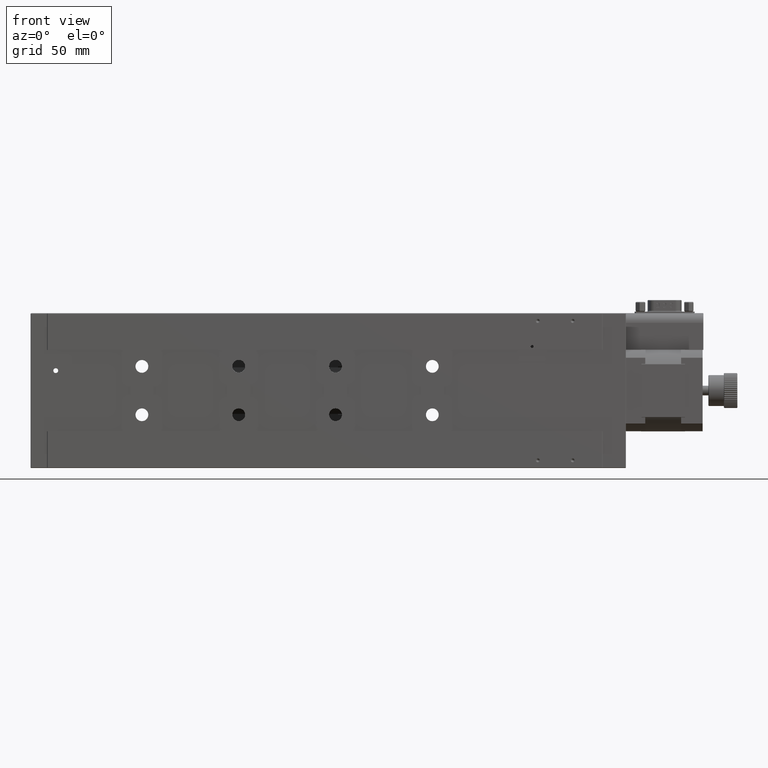
[diagram: clean part render]
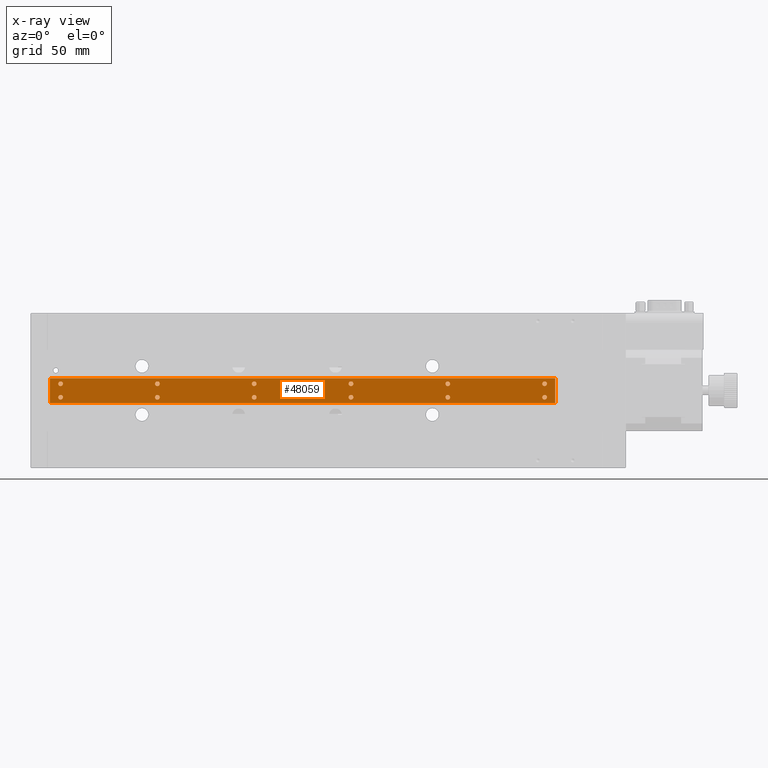
[diagram: x-ray — body ghosted, one internal face saturated and labeled with its STEP entity id]
A machine part, front view, then the same camera in x-ray: the body is ghosted and one INTERNAL B-rep face — a face not visible from any outside direction — is saturated and labeled: STEP entity #48059.
In plain terms, the highlighted planar face has unit normal (-0, -1, 0).
Its self-contained STEP definition (entity closure, byte-faithful):
#16 = CIRCLE ( 'NONE', #22900, 1.199999999999992600 ) ;
#827 = CIRCLE ( 'NONE', #70721, 1.200000000000006600 ) ;
#1364 = EDGE_CURVE ( 'NONE', #117654, #32707, #12191, .T. ) ;
#1700 = DIRECTION ( 'NONE',  ( 0.0000000000000000000, 0.0000000000000000000, -1.000000000000000000 ) ) ;
#2315 = VERTEX_POINT ( 'NONE', #43504 ) ;
#2327 = DIRECTION ( 'NONE',  ( 0.0000000000000000000, 0.0000000000000000000, -1.000000000000000000 ) ) ;
#2790 = VERTEX_POINT ( 'NONE', #96036 ) ;
#2822 = DIRECTION ( 'NONE',  ( 0.0000000000000000000, 0.0000000000000000000, -1.000000000000000000 ) ) ;
#4203 = DIRECTION ( 'NONE',  ( 1.522596426788525800E-017, 1.000000000000000000, -1.499528395081860600E-017 ) ) ;
#4611 = ORIENTED_EDGE ( 'NONE', *, *, #122025, .T. ) ;
#4987 = AXIS2_PLACEMENT_3D ( 'NONE', #100880, #111938, #93966 ) ;
#5411 = ORIENTED_EDGE ( 'NONE', *, *, #32433, .T. ) ;
#5612 = CARTESIAN_POINT ( 'NONE',  ( 15.49999999999998600, 9.500000000000005300, -43.50000000000000000 ) ) ;
#5981 = EDGE_CURVE ( 'NONE', #79364, #16590, #67551, .T. ) ;
#6752 = ORIENTED_EDGE ( 'NONE', *, *, #70922, .T. ) ;
#7409 = AXIS2_PLACEMENT_3D ( 'NONE', #84491, #94610, #116754 ) ;
#7607 = FACE_BOUND ( 'NONE', #49936, .T. ) ;
#8842 = VERTEX_POINT ( 'NONE', #40769 ) ;
#9523 = VERTEX_POINT ( 'NONE', #26834 ) ;
#9570 = EDGE_CURVE ( 'NONE', #9833, #66883, #69957, .T. ) ;
#9833 = VERTEX_POINT ( 'NONE', #32042 ) ;
#9850 = ORIENTED_EDGE ( 'NONE', *, *, #1364, .T. ) ;
#11000 = CARTESIAN_POINT ( 'NONE',  ( 15.49999999999998600, 9.500000000000005300, -37.69999999999999600 ) ) ;
#11620 = ORIENTED_EDGE ( 'NONE', *, *, #66230, .T. ) ;
#11919 = CARTESIAN_POINT ( 'NONE',  ( 115.4999999999999600, 9.500000000000003600, -36.50000000000000000 ) ) ;
#12069 = CARTESIAN_POINT ( 'NONE',  ( 65.49999999999997200, 9.500000000000005300, -36.50000000000000000 ) ) ;
#12191 = CIRCLE ( 'NONE', #89879, 1.200000000000006600 ) ;
#12503 = CIRCLE ( 'NONE', #104117, 1.199999999999999700 ) ;
#13461 = DIRECTION ( 'NONE',  ( 1.522596426788525800E-017, 1.000000000000000000, -1.499528395081860600E-017 ) ) ;
#14687 = CARTESIAN_POINT ( 'NONE',  ( 65.49999999999997200, 9.500000000000005300, -43.50000000000000000 ) ) ;
#15677 = CARTESIAN_POINT ( 'NONE',  ( 65.49999999999997200, 9.500000000000005300, -44.69999999999998900 ) ) ;
#16141 = FACE_BOUND ( 'NONE', #126332, .T. ) ;
#16237 = CARTESIAN_POINT ( 'NONE',  ( 215.4999999999999700, 9.500000000000001800, -36.50000000000000700 ) ) ;
#16590 = VERTEX_POINT ( 'NONE', #93232 ) ;
#16957 = CARTESIAN_POINT ( 'NONE',  ( 115.4999999999999600, 9.500000000000003600, -35.29999999999999700 ) ) ;
#17808 = CIRCLE ( 'NONE', #29512, 1.199999999999992600 ) ;
#17964 = CARTESIAN_POINT ( 'NONE',  ( 115.4999999999999600, 9.500000000000003600, -42.29999999999999700 ) ) ;
#18200 = EDGE_LOOP ( 'NONE', ( #11620, #69294 ) ) ;
#19752 = LINE ( 'NONE', #73700, #94062 ) ;
#19947 = AXIS2_PLACEMENT_3D ( 'NONE', #96382, #29772, #129570 ) ;
#20984 = CARTESIAN_POINT ( 'NONE',  ( 115.4999999999999600, 9.500000000000003600, -44.69999999999999600 ) ) ;
#22900 = AXIS2_PLACEMENT_3D ( 'NONE', #51431, #85240, #119371 ) ;
#23263 = AXIS2_PLACEMENT_3D ( 'NONE', #112377, #46306, #2822 ) ;
#23346 = CARTESIAN_POINT ( 'NONE',  ( 165.4999999999999700, 9.500000000000003600, -35.30000000000000400 ) ) ;
#24051 = CARTESIAN_POINT ( 'NONE',  ( 65.49999999999997200, 9.500000000000005300, -42.30000000000000400 ) ) ;
#24604 = CIRCLE ( 'NONE', #106781, 1.199999999999999700 ) ;
#25104 = DIRECTION ( 'NONE',  ( 1.522596426788525800E-017, 1.000000000000000000, -1.499528395081860600E-017 ) ) ;
#26244 = CIRCLE ( 'NONE', #4987, 1.199999999999999700 ) ;
#26834 = CARTESIAN_POINT ( 'NONE',  ( 215.4999999999999700, 9.500000000000001800, -42.30000000000001100 ) ) ;
#28783 = DIRECTION ( 'NONE',  ( 0.0000000000000000000, 0.0000000000000000000, -1.000000000000000000 ) ) ;
#29116 = CARTESIAN_POINT ( 'NONE',  ( 265.4999999999999400, 9.500000000000001800, -44.70000000000000300 ) ) ;
#29512 = AXIS2_PLACEMENT_3D ( 'NONE', #12069, #101821, #45339 ) ;
#29772 = DIRECTION ( 'NONE',  ( 1.522596426788525800E-017, 1.000000000000000000, -1.499528395081860600E-017 ) ) ;
#29785 = VERTEX_POINT ( 'NONE', #24051 ) ;
#29919 = DIRECTION ( 'NONE',  ( 1.522596426788525800E-017, 1.000000000000000000, -1.499528395081860600E-017 ) ) ;
#31198 = EDGE_CURVE ( 'NONE', #66883, #9833, #39687, .T. ) ;
#32042 = CARTESIAN_POINT ( 'NONE',  ( 165.4999999999999700, 9.500000000000003600, -42.30000000000000400 ) ) ;
#32433 = EDGE_CURVE ( 'NONE', #87376, #48609, #106659, .T. ) ;
#32505 = EDGE_LOOP ( 'NONE', ( #121168, #142845 ) ) ;
#32707 = VERTEX_POINT ( 'NONE', #35542 ) ;
#32748 = EDGE_LOOP ( 'NONE', ( #68835, #58132 ) ) ;
#33450 = FACE_BOUND ( 'NONE', #18200, .T. ) ;
#34078 = DIRECTION ( 'NONE',  ( 0.0000000000000000000, 0.0000000000000000000, -1.000000000000000000 ) ) ;
#35195 = CARTESIAN_POINT ( 'NONE',  ( 165.4999999999999700, 9.500000000000003600, -36.50000000000000700 ) ) ;
#35542 = CARTESIAN_POINT ( 'NONE',  ( 15.49999999999998600, 9.500000000000005300, -44.70000000000000300 ) ) ;
#36049 = EDGE_LOOP ( 'NONE', ( #104323, #135490, #142015, #86800 ) ) ;
#36717 = AXIS2_PLACEMENT_3D ( 'NONE', #98763, #97836, #109814 ) ;
#36940 = FACE_BOUND ( 'NONE', #118654, .T. ) ;
#38397 = EDGE_CURVE ( 'NONE', #59192, #116836, #24604, .T. ) ;
#39687 = CIRCLE ( 'NONE', #7409, 1.199999999999999700 ) ;
#40769 = CARTESIAN_POINT ( 'NONE',  ( 271.0000000000000000, 9.500000000000001800, -46.40000000000001300 ) ) ;
#41574 = AXIS2_PLACEMENT_3D ( 'NONE', #82507, #94074, #72808 ) ;
#41635 = ORIENTED_EDGE ( 'NONE', *, *, #109109, .T. ) ;
#42080 = FACE_BOUND ( 'NONE', #97999, .T. ) ;
#43150 = CARTESIAN_POINT ( 'NONE',  ( 15.49999999999998600, 9.500000000000005300, -36.49999999999999300 ) ) ;
#43504 = CARTESIAN_POINT ( 'NONE',  ( 215.4999999999999700, 9.500000000000001800, -44.69999999999999600 ) ) ;
#44221 = CIRCLE ( 'NONE', #80744, 1.199999999999992600 ) ;
#44414 = CARTESIAN_POINT ( 'NONE',  ( 271.0000000000000000, 9.500000000000001800, -33.60000000000000100 ) ) ;
#45339 = DIRECTION ( 'NONE',  ( 0.0000000000000000000, 0.0000000000000000000, -1.000000000000000000 ) ) ;
#46306 = DIRECTION ( 'NONE',  ( 1.522596426788525800E-017, 1.000000000000000000, -1.499528395081860600E-017 ) ) ;
#46812 = CARTESIAN_POINT ( 'NONE',  ( 271.0000000000000000, 9.500000000000001800, -46.40000000000001300 ) ) ;
#48059 = ADVANCED_FACE ( 'NONE', ( #85372, #42080, #62830, #48989, #118107, #78399, #16141, #36940, #81867, #69761, #7607, #102583, #33450 ), #55329, .T. ) ;
#48609 = VERTEX_POINT ( 'NONE', #118004 ) ;
#48989 = FACE_BOUND ( 'NONE', #134885, .T. ) ;
#49034 = ORIENTED_EDGE ( 'NONE', *, *, #38397, .T. ) ;
#49936 = EDGE_LOOP ( 'NONE', ( #49034, #101958 ) ) ;
#50455 = DIRECTION ( 'NONE',  ( 5.551115123125781500E-017, 1.499528395081860600E-017, 1.000000000000000000 ) ) ;
#51188 = CARTESIAN_POINT ( 'NONE',  ( 215.4999999999999700, 9.500000000000001800, -37.69999999999999600 ) ) ;
#51431 = CARTESIAN_POINT ( 'NONE',  ( 215.4999999999999700, 9.500000000000001800, -43.50000000000000700 ) ) ;
#52268 = DIRECTION ( 'NONE',  ( 1.522596426788525800E-017, 1.000000000000000000, -1.499528395081860600E-017 ) ) ;
#52326 = VERTEX_POINT ( 'NONE', #81639 ) ;
#55329 = PLANE ( 'NONE',  #36717 ) ;
#55470 = DIRECTION ( 'NONE',  ( 1.522596426788525800E-017, 1.000000000000000000, -1.499528395081860600E-017 ) ) ;
#56274 = DIRECTION ( 'NONE',  ( 1.522596426788525800E-017, 1.000000000000000000, -1.499528395081860600E-017 ) ) ;
#57385 = CARTESIAN_POINT ( 'NONE',  ( 265.4999999999999400, 9.500000000000001800, -43.50000000000001400 ) ) ;
#58132 = ORIENTED_EDGE ( 'NONE', *, *, #122291, .T. ) ;
#58209 = VERTEX_POINT ( 'NONE', #111690 ) ;
#58243 = CIRCLE ( 'NONE', #71303, 1.199999999999992600 ) ;
#59192 = VERTEX_POINT ( 'NONE', #80006 ) ;
#59589 = ORIENTED_EDGE ( 'NONE', *, *, #124928, .T. ) ;
#59629 = DIRECTION ( 'NONE',  ( 1.522596426788525800E-017, 1.000000000000000000, -1.499528395081860600E-017 ) ) ;
#59956 = DIRECTION ( 'NONE',  ( 1.522596426788525800E-017, 1.000000000000000000, -1.499528395081860600E-017 ) ) ;
#61367 = ORIENTED_EDGE ( 'NONE', *, *, #9570, .T. ) ;
#61420 = DIRECTION ( 'NONE',  ( 1.522596426788525800E-017, 1.000000000000000000, -1.499528395081860600E-017 ) ) ;
#62830 = FACE_OUTER_BOUND ( 'NONE', #36049, .T. ) ;
#62922 = ORIENTED_EDGE ( 'NONE', *, *, #110315, .T. ) ;
#62929 = EDGE_LOOP ( 'NONE', ( #130626, #117788 ) ) ;
#63805 = CIRCLE ( 'NONE', #98417, 1.199999999999992600 ) ;
#64611 = EDGE_CURVE ( 'NONE', #92748, #142520, #111330, .T. ) ;
#64722 = CARTESIAN_POINT ( 'NONE',  ( 15.49999999999998600, 9.500000000000005300, -36.49999999999999300 ) ) ;
#65374 = DIRECTION ( 'NONE',  ( 0.0000000000000000000, 0.0000000000000000000, -1.000000000000000000 ) ) ;
#65423 = AXIS2_PLACEMENT_3D ( 'NONE', #11919, #133373, #34078 ) ;
#66230 = EDGE_CURVE ( 'NONE', #142520, #92748, #17808, .T. ) ;
#66423 = CARTESIAN_POINT ( 'NONE',  ( 15.49999999999998600, 9.500000000000005300, -35.29999999999998300 ) ) ;
#66479 = EDGE_CURVE ( 'NONE', #48609, #87376, #97178, .T. ) ;
#66528 = DIRECTION ( 'NONE',  ( 0.0000000000000000000, 0.0000000000000000000, -1.000000000000000000 ) ) ;
#66638 = CIRCLE ( 'NONE', #109369, 1.200000000000006600 ) ;
#66883 = VERTEX_POINT ( 'NONE', #88245 ) ;
#67551 = CIRCLE ( 'NONE', #88828, 1.199999999999992600 ) ;
#68308 = EDGE_LOOP ( 'NONE', ( #6752, #41635 ) ) ;
#68835 = ORIENTED_EDGE ( 'NONE', *, *, #134866, .T. ) ;
#69219 = EDGE_CURVE ( 'NONE', #115476, #134603, #827, .T. ) ;
#69294 = ORIENTED_EDGE ( 'NONE', *, *, #64611, .T. ) ;
#69761 = FACE_BOUND ( 'NONE', #32505, .T. ) ;
#69957 = CIRCLE ( 'NONE', #134711, 1.199999999999999700 ) ;
#70502 = EDGE_CURVE ( 'NONE', #116836, #59192, #86701, .T. ) ;
#70650 = EDGE_CURVE ( 'NONE', #140679, #52326, #136460, .T. ) ;
#70721 = AXIS2_PLACEMENT_3D ( 'NONE', #43150, #88122, #65374 ) ;
#70922 = EDGE_CURVE ( 'NONE', #2315, #9523, #16, .T. ) ;
#71231 = CARTESIAN_POINT ( 'NONE',  ( 9.999999999999980500, 9.500000000000005300, -46.39999999999999900 ) ) ;
#71303 = AXIS2_PLACEMENT_3D ( 'NONE', #96544, #29919, #72463 ) ;
#72463 = DIRECTION ( 'NONE',  ( 0.0000000000000000000, 0.0000000000000000000, -1.000000000000000000 ) ) ;
#72808 = DIRECTION ( 'NONE',  ( 0.0000000000000000000, 0.0000000000000000000, -1.000000000000000000 ) ) ;
#73673 = VERTEX_POINT ( 'NONE', #107739 ) ;
#73700 = CARTESIAN_POINT ( 'NONE',  ( 271.0000000000000000, 9.500000000000001800, -46.40000000000001300 ) ) ;
#74964 = AXIS2_PLACEMENT_3D ( 'NONE', #98899, #55470, #78197 ) ;
#75449 = CIRCLE ( 'NONE', #23263, 1.199999999999992600 ) ;
#76505 = ORIENTED_EDGE ( 'NONE', *, *, #93852, .T. ) ;
#76707 = AXIS2_PLACEMENT_3D ( 'NONE', #79639, #13461, #2327 ) ;
#76749 = DIRECTION ( 'NONE',  ( 1.522596426788525800E-017, 1.000000000000000000, -1.499528395081860600E-017 ) ) ;
#77106 = CARTESIAN_POINT ( 'NONE',  ( 15.49999999999998600, 9.500000000000005300, -42.29999999999999000 ) ) ;
#77709 = CIRCLE ( 'NONE', #132139, 1.200000000000006600 ) ;
#78197 = DIRECTION ( 'NONE',  ( 0.0000000000000000000, 0.0000000000000000000, -1.000000000000000000 ) ) ;
#78399 = FACE_BOUND ( 'NONE', #68308, .T. ) ;
#79017 = CARTESIAN_POINT ( 'NONE',  ( 65.49999999999997200, 9.500000000000005300, -35.30000000000000400 ) ) ;
#79364 = VERTEX_POINT ( 'NONE', #51188 ) ;
#79639 = CARTESIAN_POINT ( 'NONE',  ( 215.4999999999999700, 9.500000000000001800, -36.50000000000000700 ) ) ;
#79708 = DIRECTION ( 'NONE',  ( 0.0000000000000000000, 0.0000000000000000000, -1.000000000000000000 ) ) ;
#79829 = CARTESIAN_POINT ( 'NONE',  ( 9.999999999999980500, 9.500000000000005300, -46.39999999999999900 ) ) ;
#80006 = CARTESIAN_POINT ( 'NONE',  ( 115.4999999999999600, 9.500000000000003600, -37.69999999999999600 ) ) ;
#80744 = AXIS2_PLACEMENT_3D ( 'NONE', #83213, #61420, #106277 ) ;
#80869 = EDGE_LOOP ( 'NONE', ( #62922, #76505 ) ) ;
#81639 = CARTESIAN_POINT ( 'NONE',  ( 9.999999999999980500, 9.500000000000005300, -33.59999999999999400 ) ) ;
#81709 = DIRECTION ( 'NONE',  ( 0.0000000000000000000, 0.0000000000000000000, -1.000000000000000000 ) ) ;
#81867 = FACE_BOUND ( 'NONE', #32748, .T. ) ;
#81912 = VERTEX_POINT ( 'NONE', #23346 ) ;
#82507 = CARTESIAN_POINT ( 'NONE',  ( 265.4999999999999400, 9.500000000000001800, -43.50000000000001400 ) ) ;
#83213 = CARTESIAN_POINT ( 'NONE',  ( 65.49999999999997200, 9.500000000000005300, -43.50000000000000000 ) ) ;
#83998 = CARTESIAN_POINT ( 'NONE',  ( 271.0000000000000000, 9.500000000000001800, -33.60000000000000100 ) ) ;
#84491 = CARTESIAN_POINT ( 'NONE',  ( 165.4999999999999700, 9.500000000000003600, -43.50000000000000700 ) ) ;
#85240 = DIRECTION ( 'NONE',  ( 1.522596426788525800E-017, 1.000000000000000000, -1.499528395081860600E-017 ) ) ;
#85372 = FACE_BOUND ( 'NONE', #88265, .T. ) ;
#86402 = ORIENTED_EDGE ( 'NONE', *, *, #31198, .T. ) ;
#86474 = AXIS2_PLACEMENT_3D ( 'NONE', #35195, #25104, #79708 ) ;
#86701 = CIRCLE ( 'NONE', #65423, 1.199999999999999700 ) ;
#86800 = ORIENTED_EDGE ( 'NONE', *, *, #118673, .F. ) ;
#87376 = VERTEX_POINT ( 'NONE', #29116 ) ;
#87433 = VERTEX_POINT ( 'NONE', #17964 ) ;
#87544 = ORIENTED_EDGE ( 'NONE', *, *, #130258, .T. ) ;
#88122 = DIRECTION ( 'NONE',  ( 1.522596426788525800E-017, 1.000000000000000000, -1.499528395081860600E-017 ) ) ;
#88245 = CARTESIAN_POINT ( 'NONE',  ( 165.4999999999999700, 9.500000000000003600, -44.70000000000000300 ) ) ;
#88265 = EDGE_LOOP ( 'NONE', ( #4611, #114651 ) ) ;
#88828 = AXIS2_PLACEMENT_3D ( 'NONE', #16237, #4203, #114211 ) ;
#89879 = AXIS2_PLACEMENT_3D ( 'NONE', #99836, #76749, #122452 ) ;
#90275 = DIRECTION ( 'NONE',  ( 1.522596426788525800E-017, 1.000000000000000000, -1.499528395081860600E-017 ) ) ;
#91474 = EDGE_CURVE ( 'NONE', #87433, #128498, #12503, .T. ) ;
#91779 = DIRECTION ( 'NONE',  ( -5.551115123125781500E-017, -1.499528395081860600E-017, -1.000000000000000000 ) ) ;
#92748 = VERTEX_POINT ( 'NONE', #79017 ) ;
#93034 = CARTESIAN_POINT ( 'NONE',  ( 165.4999999999999700, 9.500000000000003600, -43.50000000000000700 ) ) ;
#93232 = CARTESIAN_POINT ( 'NONE',  ( 215.4999999999999700, 9.500000000000001800, -35.30000000000001100 ) ) ;
#93677 = CARTESIAN_POINT ( 'NONE',  ( 115.4999999999999600, 9.500000000000003600, -43.50000000000000000 ) ) ;
#93726 = CIRCLE ( 'NONE', #74964, 1.199999999999992600 ) ;
#93852 = EDGE_CURVE ( 'NONE', #58209, #73673, #93726, .T. ) ;
#93966 = DIRECTION ( 'NONE',  ( 0.0000000000000000000, 0.0000000000000000000, -1.000000000000000000 ) ) ;
#94062 = VECTOR ( 'NONE', #105044, 1000.000000000000000 ) ;
#94074 = DIRECTION ( 'NONE',  ( 1.522596426788525800E-017, 1.000000000000000000, -1.499528395081860600E-017 ) ) ;
#94444 = VERTEX_POINT ( 'NONE', #15677 ) ;
#94610 = DIRECTION ( 'NONE',  ( 1.522596426788525800E-017, 1.000000000000000000, -1.499528395081860600E-017 ) ) ;
#96036 = CARTESIAN_POINT ( 'NONE',  ( 165.4999999999999700, 9.500000000000003600, -37.70000000000000300 ) ) ;
#96334 = DIRECTION ( 'NONE',  ( 1.522596426788525800E-017, 1.000000000000000000, -1.499528395081860600E-017 ) ) ;
#96382 = CARTESIAN_POINT ( 'NONE',  ( 165.4999999999999700, 9.500000000000003600, -36.50000000000000700 ) ) ;
#96544 = CARTESIAN_POINT ( 'NONE',  ( 215.4999999999999700, 9.500000000000001800, -43.50000000000000700 ) ) ;
#96913 = CIRCLE ( 'NONE', #76707, 1.199999999999992600 ) ;
#97178 = CIRCLE ( 'NONE', #41574, 1.199999999999992600 ) ;
#97836 = DIRECTION ( 'NONE',  ( -1.522596426788525800E-017, -1.000000000000000000, 1.499528395081860600E-017 ) ) ;
#97999 = EDGE_LOOP ( 'NONE', ( #87544, #9850 ) ) ;
#98417 = AXIS2_PLACEMENT_3D ( 'NONE', #14687, #59629, #126570 ) ;
#98763 = CARTESIAN_POINT ( 'NONE',  ( 140.5000000000000000, 9.500000000000003600, -40.00000000000000000 ) ) ;
#98899 = CARTESIAN_POINT ( 'NONE',  ( 265.4999999999999400, 9.500000000000001800, -36.50000000000000700 ) ) ;
#99131 = AXIS2_PLACEMENT_3D ( 'NONE', #57385, #90275, #66528 ) ;
#99836 = CARTESIAN_POINT ( 'NONE',  ( 15.49999999999998600, 9.500000000000005300, -43.50000000000000000 ) ) ;
#100330 = VECTOR ( 'NONE', #50455, 1000.000000000000000 ) ;
#100880 = CARTESIAN_POINT ( 'NONE',  ( 115.4999999999999600, 9.500000000000003600, -43.50000000000000000 ) ) ;
#101007 = CARTESIAN_POINT ( 'NONE',  ( 65.49999999999997200, 9.500000000000005300, -36.50000000000000000 ) ) ;
#101821 = DIRECTION ( 'NONE',  ( 1.522596426788525800E-017, 1.000000000000000000, -1.499528395081860600E-017 ) ) ;
#101958 = ORIENTED_EDGE ( 'NONE', *, *, #70502, .T. ) ;
#102000 = EDGE_CURVE ( 'NONE', #8842, #140679, #19752, .T. ) ;
#102583 = FACE_BOUND ( 'NONE', #62929, .T. ) ;
#103212 = CARTESIAN_POINT ( 'NONE',  ( 65.49999999999997200, 9.500000000000005300, -37.69999999999998900 ) ) ;
#104117 = AXIS2_PLACEMENT_3D ( 'NONE', #93677, #114834, #124887 ) ;
#104323 = ORIENTED_EDGE ( 'NONE', *, *, #70650, .F. ) ;
#104989 = VECTOR ( 'NONE', #122055, 1000.000000000000000 ) ;
#105030 = DIRECTION ( 'NONE',  ( 0.0000000000000000000, 0.0000000000000000000, -1.000000000000000000 ) ) ;
#105044 = DIRECTION ( 'NONE',  ( -1.000000000000000000, 1.522596426788527300E-017, 5.551115123125781500E-017 ) ) ;
#106198 = VECTOR ( 'NONE', #91779, 1000.000000000000000 ) ;
#106277 = DIRECTION ( 'NONE',  ( 0.0000000000000000000, 0.0000000000000000000, -1.000000000000000000 ) ) ;
#106659 = CIRCLE ( 'NONE', #99131, 1.199999999999992600 ) ;
#106781 = AXIS2_PLACEMENT_3D ( 'NONE', #127606, #96334, #28783 ) ;
#107124 = ORIENTED_EDGE ( 'NONE', *, *, #5981, .T. ) ;
#107739 = CARTESIAN_POINT ( 'NONE',  ( 265.4999999999999400, 9.500000000000001800, -37.69999999999999600 ) ) ;
#109109 = EDGE_CURVE ( 'NONE', #9523, #2315, #58243, .T. ) ;
#109369 = AXIS2_PLACEMENT_3D ( 'NONE', #64722, #52268, #118797 ) ;
#109814 = DIRECTION ( 'NONE',  ( 5.551115123125781500E-017, 1.499528395081860600E-017, 1.000000000000000000 ) ) ;
#110315 = EDGE_CURVE ( 'NONE', #73673, #58209, #75449, .T. ) ;
#111330 = CIRCLE ( 'NONE', #129789, 1.199999999999992600 ) ;
#111690 = CARTESIAN_POINT ( 'NONE',  ( 265.4999999999999400, 9.500000000000001800, -35.30000000000001100 ) ) ;
#111938 = DIRECTION ( 'NONE',  ( 1.522596426788525800E-017, 1.000000000000000000, -1.499528395081860600E-017 ) ) ;
#112377 = CARTESIAN_POINT ( 'NONE',  ( 265.4999999999999400, 9.500000000000001800, -36.50000000000000700 ) ) ;
#114211 = DIRECTION ( 'NONE',  ( 0.0000000000000000000, 0.0000000000000000000, -1.000000000000000000 ) ) ;
#114651 = ORIENTED_EDGE ( 'NONE', *, *, #69219, .T. ) ;
#114834 = DIRECTION ( 'NONE',  ( 1.522596426788525800E-017, 1.000000000000000000, -1.499528395081860600E-017 ) ) ;
#115476 = VERTEX_POINT ( 'NONE', #66423 ) ;
#116129 = DIRECTION ( 'NONE',  ( 1.522596426788525800E-017, 1.000000000000000000, -1.499528395081860600E-017 ) ) ;
#116754 = DIRECTION ( 'NONE',  ( 0.0000000000000000000, 0.0000000000000000000, -1.000000000000000000 ) ) ;
#116836 = VERTEX_POINT ( 'NONE', #16957 ) ;
#117654 = VERTEX_POINT ( 'NONE', #77106 ) ;
#117721 = EDGE_CURVE ( 'NONE', #29785, #94444, #63805, .T. ) ;
#117788 = ORIENTED_EDGE ( 'NONE', *, *, #117721, .T. ) ;
#118004 = CARTESIAN_POINT ( 'NONE',  ( 265.4999999999999400, 9.500000000000001800, -42.30000000000001800 ) ) ;
#118107 = FACE_BOUND ( 'NONE', #80869, .T. ) ;
#118654 = EDGE_LOOP ( 'NONE', ( #86402, #61367 ) ) ;
#118673 = EDGE_CURVE ( 'NONE', #52326, #119123, #122229, .T. ) ;
#118796 = CIRCLE ( 'NONE', #19947, 1.199999999999999700 ) ;
#118797 = DIRECTION ( 'NONE',  ( 0.0000000000000000000, 0.0000000000000000000, -1.000000000000000000 ) ) ;
#119123 = VERTEX_POINT ( 'NONE', #83998 ) ;
#119128 = CIRCLE ( 'NONE', #86474, 1.199999999999999700 ) ;
#119371 = DIRECTION ( 'NONE',  ( 0.0000000000000000000, 0.0000000000000000000, -1.000000000000000000 ) ) ;
#121168 = ORIENTED_EDGE ( 'NONE', *, *, #133732, .T. ) ;
#121918 = EDGE_CURVE ( 'NONE', #94444, #29785, #44221, .T. ) ;
#122025 = EDGE_CURVE ( 'NONE', #134603, #115476, #66638, .T. ) ;
#122055 = DIRECTION ( 'NONE',  ( 1.000000000000000000, -1.522596426788527300E-017, -5.551115123125781500E-017 ) ) ;
#122229 = LINE ( 'NONE', #44414, #104989 ) ;
#122291 = EDGE_CURVE ( 'NONE', #81912, #2790, #119128, .T. ) ;
#122452 = DIRECTION ( 'NONE',  ( 0.0000000000000000000, 0.0000000000000000000, -1.000000000000000000 ) ) ;
#124887 = DIRECTION ( 'NONE',  ( 0.0000000000000000000, 0.0000000000000000000, -1.000000000000000000 ) ) ;
#124928 = EDGE_CURVE ( 'NONE', #16590, #79364, #96913, .T. ) ;
#126332 = EDGE_LOOP ( 'NONE', ( #107124, #59589 ) ) ;
#126570 = DIRECTION ( 'NONE',  ( 0.0000000000000000000, 0.0000000000000000000, -1.000000000000000000 ) ) ;
#127606 = CARTESIAN_POINT ( 'NONE',  ( 115.4999999999999600, 9.500000000000003600, -36.50000000000000000 ) ) ;
#128498 = VERTEX_POINT ( 'NONE', #20984 ) ;
#129570 = DIRECTION ( 'NONE',  ( 0.0000000000000000000, 0.0000000000000000000, -1.000000000000000000 ) ) ;
#129789 = AXIS2_PLACEMENT_3D ( 'NONE', #101007, #59956, #81709 ) ;
#130258 = EDGE_CURVE ( 'NONE', #32707, #117654, #77709, .T. ) ;
#130626 = ORIENTED_EDGE ( 'NONE', *, *, #121918, .T. ) ;
#132139 = AXIS2_PLACEMENT_3D ( 'NONE', #5612, #116129, #105030 ) ;
#133373 = DIRECTION ( 'NONE',  ( 1.522596426788525800E-017, 1.000000000000000000, -1.499528395081860600E-017 ) ) ;
#133732 = EDGE_CURVE ( 'NONE', #128498, #87433, #26244, .T. ) ;
#134603 = VERTEX_POINT ( 'NONE', #11000 ) ;
#134711 = AXIS2_PLACEMENT_3D ( 'NONE', #93034, #56274, #1700 ) ;
#134866 = EDGE_CURVE ( 'NONE', #2790, #81912, #118796, .T. ) ;
#134885 = EDGE_LOOP ( 'NONE', ( #5411, #139176 ) ) ;
#135490 = ORIENTED_EDGE ( 'NONE', *, *, #102000, .F. ) ;
#136460 = LINE ( 'NONE', #71231, #100330 ) ;
#139176 = ORIENTED_EDGE ( 'NONE', *, *, #66479, .T. ) ;
#139740 = EDGE_CURVE ( 'NONE', #119123, #8842, #140719, .T. ) ;
#140679 = VERTEX_POINT ( 'NONE', #79829 ) ;
#140719 = LINE ( 'NONE', #46812, #106198 ) ;
#142015 = ORIENTED_EDGE ( 'NONE', *, *, #139740, .F. ) ;
#142520 = VERTEX_POINT ( 'NONE', #103212 ) ;
#142845 = ORIENTED_EDGE ( 'NONE', *, *, #91474, .T. ) ;